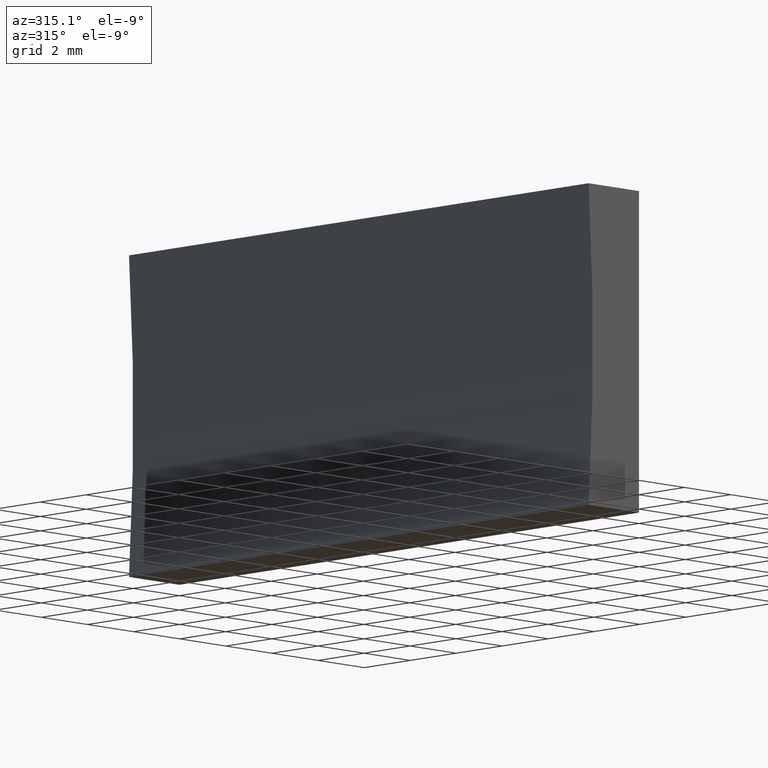
[diagram: clean part render]
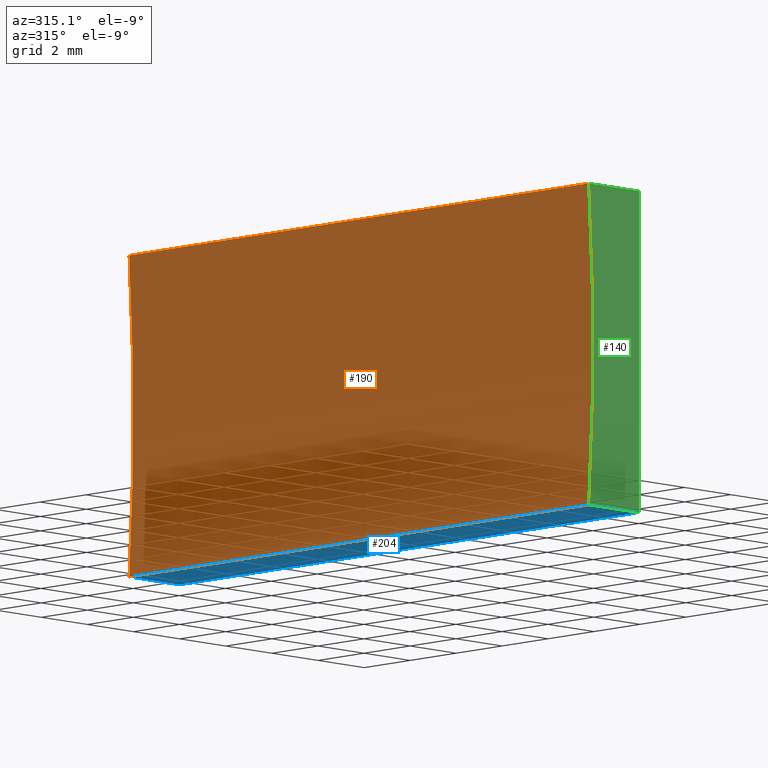
[diagram: same view with three faces highlighted in distinct colors, each labeled with its STEP entity id]
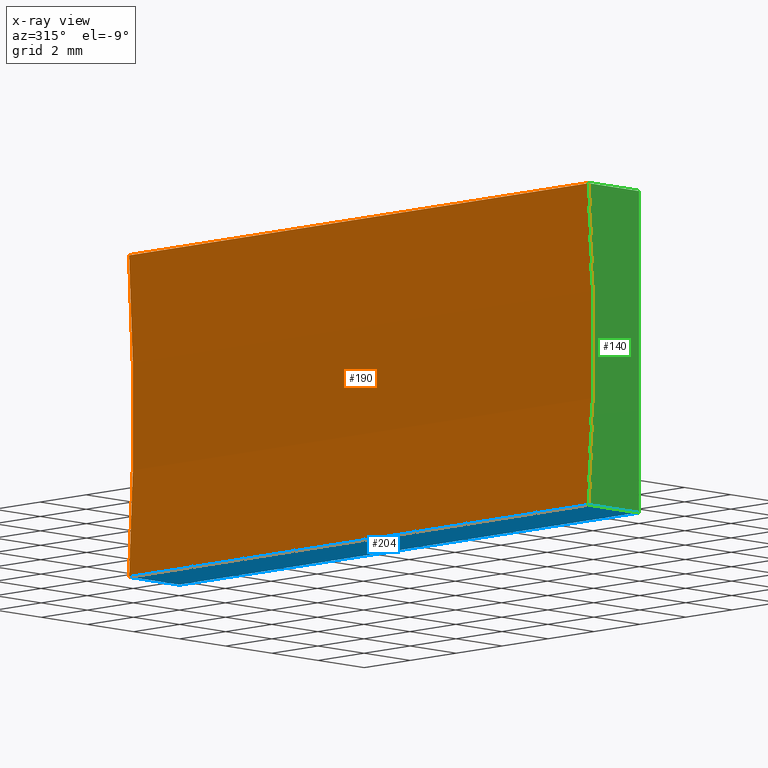
[diagram: x-ray of the same camera — body ghosted, the three highlighted faces saturated]
A machine part, auxiliary view with three faces highlighted in distinct colors.
The next image is the same camera in x-ray (body ghosted, the three faces saturated) — at least one of them is partly hidden behind the body in this view.
Their STEP definitions:

[orange] entity #190 — the highlighted cylindrical surface (partial cylindrical patch) has radius 68.78 mm, axis along (-0, -1, -0).
#6 = VERTEX_POINT ( 'NONE', #93 ) ;
#29 = ORIENTED_EDGE ( 'NONE', *, *, #169, .F. ) ;
#30 = DIRECTION ( 'NONE',  ( 0.0000000000000000000, 0.0000000000000000000, 1.000000000000000000 ) ) ;
#31 = CYLINDRICAL_SURFACE ( 'NONE', #70, 68.78000000000000100 ) ;
#39 = VECTOR ( 'NONE', #171, 1000.000000000000000 ) ;
#42 = CARTESIAN_POINT ( 'NONE',  ( -2.181979620400120300, 20.00000000000000000, 10.00000000000000000 ) ) ;
#49 = LINE ( 'NONE', #193, #184 ) ;
#54 = AXIS2_PLACEMENT_3D ( 'NONE', #172, #149, #30 ) ;
#67 = FACE_OUTER_BOUND ( 'NONE', #143, .T. ) ;
#69 = VERTEX_POINT ( 'NONE', #168 ) ;
#70 = AXIS2_PLACEMENT_3D ( 'NONE', #124, #78, #101 ) ;
#75 = CARTESIAN_POINT ( 'NONE',  ( -2.181979620400120700, 0.0000000000000000000, 4.336808689942017700E-015 ) ) ;
#78 = DIRECTION ( 'NONE',  ( -0.0000000000000000000, -1.000000000000000000, -0.0000000000000000000 ) ) ;
#90 = DIRECTION ( 'NONE',  ( -0.0000000000000000000, -1.000000000000000000, -0.0000000000000000000 ) ) ;
#93 = CARTESIAN_POINT ( 'NONE',  ( -2.181979620400120700, 20.00000000000000000, 4.336808689942017700E-015 ) ) ;
#96 = ORIENTED_EDGE ( 'NONE', *, *, #112, .F. ) ;
#101 = DIRECTION ( 'NONE',  ( 0.0000000000000000000, 0.0000000000000000000, -1.000000000000000000 ) ) ;
#107 = DIRECTION ( 'NONE',  ( 0.0000000000000000000, 0.0000000000000000000, 1.000000000000000000 ) ) ;
#108 = ORIENTED_EDGE ( 'NONE', *, *, #159, .T. ) ;
#110 = VERTEX_POINT ( 'NONE', #42 ) ;
#112 = EDGE_CURVE ( 'NONE', #6, #110, #114, .T. ) ;
#114 = CIRCLE ( 'NONE', #54, 68.78000000000000100 ) ;
#119 = VERTEX_POINT ( 'NONE', #75 ) ;
#124 = CARTESIAN_POINT ( 'NONE',  ( -70.78000000000001500, 20.00000000000000000, 5.000000000000008000 ) ) ;
#125 = LINE ( 'NONE', #139, #39 ) ;
#130 = ORIENTED_EDGE ( 'NONE', *, *, #141, .T. ) ;
#139 = CARTESIAN_POINT ( 'NONE',  ( -2.181979620400120300, 20.00000000000000000, 10.00000000000000000 ) ) ;
#141 = EDGE_CURVE ( 'NONE', #6, #119, #49, .T. ) ;
#143 = EDGE_LOOP ( 'NONE', ( #108, #29, #96, #130 ) ) ;
#149 = DIRECTION ( 'NONE',  ( -0.0000000000000000000, -1.000000000000000000, -0.0000000000000000000 ) ) ;
#159 = EDGE_CURVE ( 'NONE', #119, #69, #198, .T. ) ;
#166 = DIRECTION ( 'NONE',  ( -0.0000000000000000000, -1.000000000000000000, -0.0000000000000000000 ) ) ;
#167 = AXIS2_PLACEMENT_3D ( 'NONE', #182, #166, #107 ) ;
#168 = CARTESIAN_POINT ( 'NONE',  ( -2.181979620400120300, 0.0000000000000000000, 10.00000000000000000 ) ) ;
#169 = EDGE_CURVE ( 'NONE', #110, #69, #125, .T. ) ;
#171 = DIRECTION ( 'NONE',  ( -0.0000000000000000000, -1.000000000000000000, -0.0000000000000000000 ) ) ;
#172 = CARTESIAN_POINT ( 'NONE',  ( -70.78000000000001500, 20.00000000000000000, 5.000000000000008000 ) ) ;
#182 = CARTESIAN_POINT ( 'NONE',  ( -70.78000000000001500, 0.0000000000000000000, 5.000000000000008000 ) ) ;
#184 = VECTOR ( 'NONE', #90, 1000.000000000000000 ) ;
#190 = ADVANCED_FACE ( 'NONE', ( #67 ), #31, .F. ) ;
#193 = CARTESIAN_POINT ( 'NONE',  ( -2.181979620400120700, 20.00000000000000000, 4.336808689942017700E-015 ) ) ;
#198 = CIRCLE ( 'NONE', #167, 68.78000000000000100 ) ;

[blue] entity #204 — the highlighted planar face has unit normal (0, -0, 1).
#2 = ORIENTED_EDGE ( 'NONE', *, *, #99, .T. ) ;
#3 = VERTEX_POINT ( 'NONE', #200 ) ;
#6 = VERTEX_POINT ( 'NONE', #93 ) ;
#40 = VECTOR ( 'NONE', #126, 1000.000000000000000 ) ;
#41 = EDGE_CURVE ( 'NONE', #3, #6, #91, .T. ) ;
#44 = LINE ( 'NONE', #164, #40 ) ;
#45 = FACE_OUTER_BOUND ( 'NONE', #57, .T. ) ;
#48 = CARTESIAN_POINT ( 'NONE',  ( 0.0000000000000000000, 0.0000000000000000000, 0.0000000000000000000 ) ) ;
#49 = LINE ( 'NONE', #193, #184 ) ;
#52 = ORIENTED_EDGE ( 'NONE', *, *, #141, .F. ) ;
#57 = EDGE_LOOP ( 'NONE', ( #144, #52, #113, #2 ) ) ;
#61 = DIRECTION ( 'NONE',  ( -1.000000000000000000, 0.0000000000000000000, 0.0000000000000000000 ) ) ;
#63 = VECTOR ( 'NONE', #133, 1000.000000000000000 ) ;
#68 = AXIS2_PLACEMENT_3D ( 'NONE', #191, #152, #120 ) ;
#75 = CARTESIAN_POINT ( 'NONE',  ( -2.181979620400120700, 0.0000000000000000000, 4.336808689942017700E-015 ) ) ;
#77 = VERTEX_POINT ( 'NONE', #48 ) ;
#90 = DIRECTION ( 'NONE',  ( -0.0000000000000000000, -1.000000000000000000, -0.0000000000000000000 ) ) ;
#91 = LINE ( 'NONE', #163, #116 ) ;
#93 = CARTESIAN_POINT ( 'NONE',  ( -2.181979620400120700, 20.00000000000000000, 4.336808689942017700E-015 ) ) ;
#99 = EDGE_CURVE ( 'NONE', #3, #77, #129, .T. ) ;
#106 = PLANE ( 'NONE',  #68 ) ;
#113 = ORIENTED_EDGE ( 'NONE', *, *, #41, .F. ) ;
#116 = VECTOR ( 'NONE', #61, 1000.000000000000000 ) ;
#119 = VERTEX_POINT ( 'NONE', #75 ) ;
#120 = DIRECTION ( 'NONE',  ( 1.000000000000000000, 0.0000000000000000000, -0.0000000000000000000 ) ) ;
#126 = DIRECTION ( 'NONE',  ( -1.000000000000000000, 0.0000000000000000000, 0.0000000000000000000 ) ) ;
#129 = LINE ( 'NONE', #170, #63 ) ;
#133 = DIRECTION ( 'NONE',  ( -0.0000000000000000000, -1.000000000000000000, -0.0000000000000000000 ) ) ;
#141 = EDGE_CURVE ( 'NONE', #6, #119, #49, .T. ) ;
#144 = ORIENTED_EDGE ( 'NONE', *, *, #162, .T. ) ;
#152 = DIRECTION ( 'NONE',  ( 0.0000000000000000000, -0.0000000000000000000, 1.000000000000000000 ) ) ;
#162 = EDGE_CURVE ( 'NONE', #77, #119, #44, .T. ) ;
#163 = CARTESIAN_POINT ( 'NONE',  ( 0.0000000000000000000, 20.00000000000000000, 0.0000000000000000000 ) ) ;
#164 = CARTESIAN_POINT ( 'NONE',  ( 0.0000000000000000000, 0.0000000000000000000, 0.0000000000000000000 ) ) ;
#170 = CARTESIAN_POINT ( 'NONE',  ( 0.0000000000000000000, 20.00000000000000000, 0.0000000000000000000 ) ) ;
#184 = VECTOR ( 'NONE', #90, 1000.000000000000000 ) ;
#191 = CARTESIAN_POINT ( 'NONE',  ( 0.0000000000000000000, 20.00000000000000000, 0.0000000000000000000 ) ) ;
#193 = CARTESIAN_POINT ( 'NONE',  ( -2.181979620400120700, 20.00000000000000000, 4.336808689942017700E-015 ) ) ;
#200 = CARTESIAN_POINT ( 'NONE',  ( 0.0000000000000000000, 20.00000000000000000, 0.0000000000000000000 ) ) ;
#204 = ADVANCED_FACE ( 'NONE', ( #45 ), #106, .F. ) ;

[green] entity #140 — the highlighted planar face has unit normal (0, 1, 0).
#4 = ORIENTED_EDGE ( 'NONE', *, *, #131, .F. ) ;
#10 = EDGE_LOOP ( 'NONE', ( #21, #202, #4, #145 ) ) ;
#13 = LINE ( 'NONE', #181, #43 ) ;
#16 = CARTESIAN_POINT ( 'NONE',  ( -70.78000000000001500, 0.0000000000000000000, 5.000000000000008000 ) ) ;
#21 = ORIENTED_EDGE ( 'NONE', *, *, #162, .F. ) ;
#33 = AXIS2_PLACEMENT_3D ( 'NONE', #16, #87, #92 ) ;
#36 = VERTEX_POINT ( 'NONE', #195 ) ;
#38 = CARTESIAN_POINT ( 'NONE',  ( 6.123233995736766300E-016, 0.0000000000000000000, 10.00000000000000000 ) ) ;
#40 = VECTOR ( 'NONE', #126, 1000.000000000000000 ) ;
#43 = VECTOR ( 'NONE', #76, 1000.000000000000000 ) ;
#44 = LINE ( 'NONE', #164, #40 ) ;
#48 = CARTESIAN_POINT ( 'NONE',  ( 0.0000000000000000000, 0.0000000000000000000, 0.0000000000000000000 ) ) ;
#59 = VECTOR ( 'NONE', #188, 1000.000000000000000 ) ;
#69 = VERTEX_POINT ( 'NONE', #168 ) ;
#75 = CARTESIAN_POINT ( 'NONE',  ( -2.181979620400120700, 0.0000000000000000000, 4.336808689942017700E-015 ) ) ;
#76 = DIRECTION ( 'NONE',  ( -6.123233995736766000E-017, -0.0000000000000000000, -1.000000000000000000 ) ) ;
#77 = VERTEX_POINT ( 'NONE', #48 ) ;
#87 = DIRECTION ( 'NONE',  ( 0.0000000000000000000, 1.000000000000000000, 0.0000000000000000000 ) ) ;
#92 = DIRECTION ( 'NONE',  ( 0.0000000000000000000, -0.0000000000000000000, 1.000000000000000000 ) ) ;
#107 = DIRECTION ( 'NONE',  ( 0.0000000000000000000, 0.0000000000000000000, 1.000000000000000000 ) ) ;
#111 = PLANE ( 'NONE',  #33 ) ;
#118 = EDGE_CURVE ( 'NONE', #36, #77, #13, .T. ) ;
#119 = VERTEX_POINT ( 'NONE', #75 ) ;
#126 = DIRECTION ( 'NONE',  ( -1.000000000000000000, 0.0000000000000000000, 0.0000000000000000000 ) ) ;
#131 = EDGE_CURVE ( 'NONE', #69, #36, #192, .T. ) ;
#140 = ADVANCED_FACE ( 'NONE', ( #203 ), #111, .F. ) ;
#145 = ORIENTED_EDGE ( 'NONE', *, *, #159, .F. ) ;
#159 = EDGE_CURVE ( 'NONE', #119, #69, #198, .T. ) ;
#162 = EDGE_CURVE ( 'NONE', #77, #119, #44, .T. ) ;
#164 = CARTESIAN_POINT ( 'NONE',  ( 0.0000000000000000000, 0.0000000000000000000, 0.0000000000000000000 ) ) ;
#166 = DIRECTION ( 'NONE',  ( -0.0000000000000000000, -1.000000000000000000, -0.0000000000000000000 ) ) ;
#167 = AXIS2_PLACEMENT_3D ( 'NONE', #182, #166, #107 ) ;
#168 = CARTESIAN_POINT ( 'NONE',  ( -2.181979620400120300, 0.0000000000000000000, 10.00000000000000000 ) ) ;
#181 = CARTESIAN_POINT ( 'NONE',  ( 0.0000000000000000000, 0.0000000000000000000, 0.0000000000000000000 ) ) ;
#182 = CARTESIAN_POINT ( 'NONE',  ( -70.78000000000001500, 0.0000000000000000000, 5.000000000000008000 ) ) ;
#188 = DIRECTION ( 'NONE',  ( 1.000000000000000000, -0.0000000000000000000, -0.0000000000000000000 ) ) ;
#192 = LINE ( 'NONE', #38, #59 ) ;
#195 = CARTESIAN_POINT ( 'NONE',  ( 6.123233995736766300E-016, 0.0000000000000000000, 10.00000000000000000 ) ) ;
#198 = CIRCLE ( 'NONE', #167, 68.78000000000000100 ) ;
#202 = ORIENTED_EDGE ( 'NONE', *, *, #118, .F. ) ;
#203 = FACE_OUTER_BOUND ( 'NONE', #10, .T. ) ;